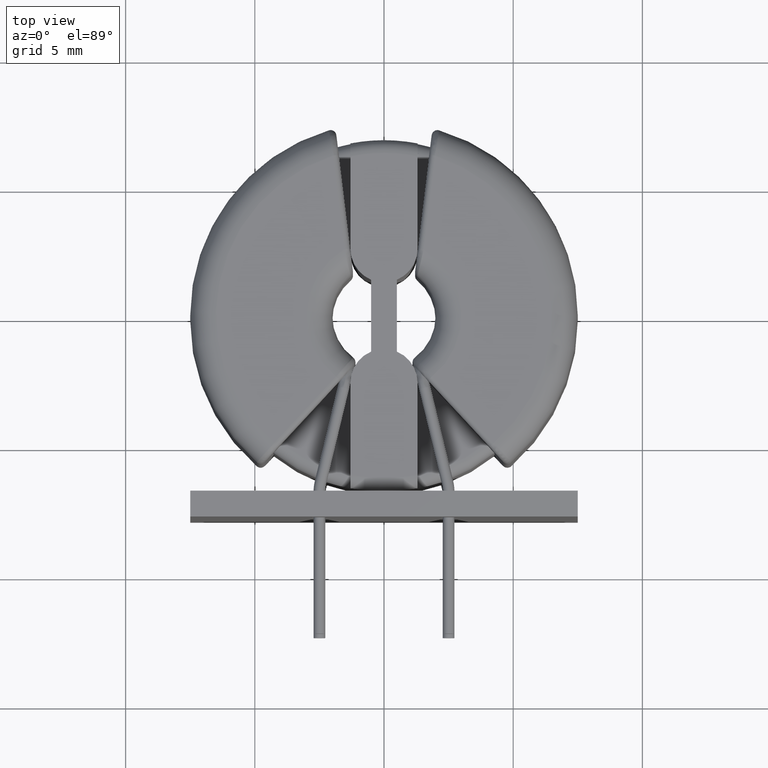
[diagram: clean part render]
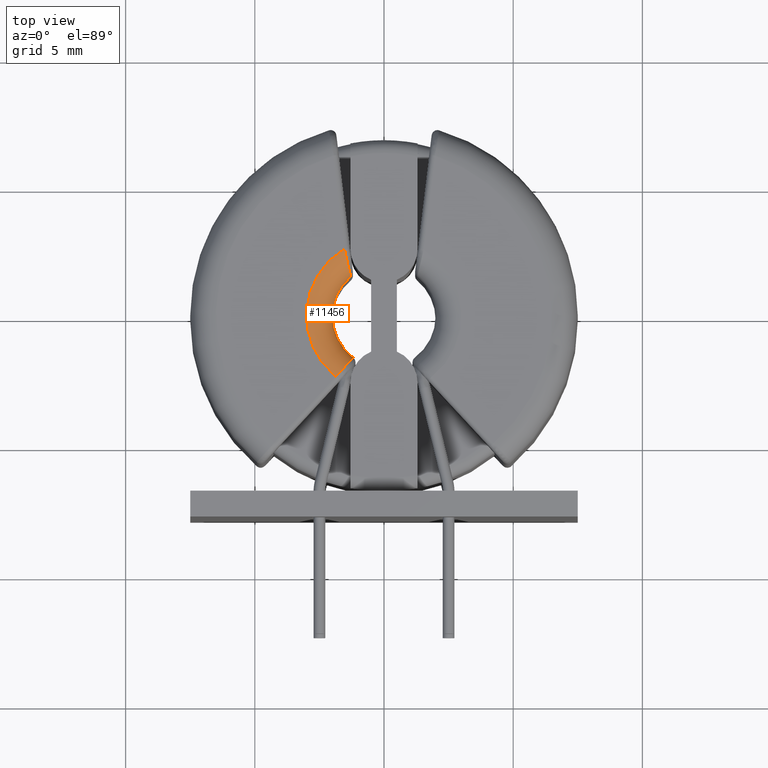
[diagram: same view with one face highlighted and labeled with its STEP entity id]
A machine part, top view. The second image highlights one B-rep face of the part: STEP entity #11456.
In plain terms, the highlighted toroidal blend (fillet) surface has major radius 3 mm and minor (blend) radius 1 mm.
Its self-contained STEP definition (entity closure, byte-faithful):
#234 = DIRECTION ( 'NONE',  ( 0.0000000000000000000, 0.0000000000000000000, 1.000000000000000000 ) ) ;
#272 = CARTESIAN_POINT ( 'NONE',  ( -1.284196003064234093, 1.533245129036399534, 4.400000000000000355 ) ) ;
#815 = CARTESIAN_POINT ( 'NONE',  ( -1.322678405962691262, 1.674164347962722843, 4.916663689870678589 ) ) ;
#922 = CARTESIAN_POINT ( 'NONE',  ( -1.344157074001370855, 1.755201357478131330, 5.027266490034931756 ) ) ;
#948 = ORIENTED_EDGE ( 'NONE', *, *, #8987, .T. ) ;
#1565 = EDGE_CURVE ( 'NONE', #11104, #10008, #3907, .T. ) ;
#1747 = CARTESIAN_POINT ( 'NONE',  ( -1.420910795090495560, 2.065323591915520840, 5.279158598817667247 ) ) ;
#1782 = CARTESIAN_POINT ( 'NONE',  ( -1.477676440515110379, 2.313076939815662314, 5.375264390133119186 ) ) ;
#1822 = CARTESIAN_POINT ( 'NONE',  ( -1.534424193106629586, 2.577894954339503109, 5.400000000000000355 ) ) ;
#1919 = VERTEX_POINT ( 'NONE', #272 ) ;
#1926 = DIRECTION ( 'NONE',  ( 1.000000000000000000, 0.0000000000000000000, 0.0000000000000000000 ) ) ;
#2020 = CARTESIAN_POINT ( 'NONE',  ( 0.0000000000000000000, 0.0000000000000000000, 5.400000000000000355 ) ) ;
#2171 = AXIS2_PLACEMENT_3D ( 'NONE', #6030, #234, #1926 ) ;
#2786 = CARTESIAN_POINT ( 'NONE',  ( -1.860050133224532498, -2.353765812881859265, 5.400000000000000355 ) ) ;
#3437 = CARTESIAN_POINT ( 'NONE',  ( -1.195722130036791953, -1.603199484699354915, 4.400000000000000355 ) ) ;
#3513 = CARTESIAN_POINT ( 'NONE',  ( -1.685433509741102176, -2.158568949587655439, 5.374077687843559659 ) ) ;
#3642 = CARTESIAN_POINT ( 'NONE',  ( -1.524311116495076668, -1.977297972679602500, 5.273937292070503879 ) ) ;
#3907 = B_SPLINE_CURVE_WITH_KNOTS ( 'NONE', 3,
 ( #4468, #7551, #3513, #3642, #4517, #11322, #5484, #9303 ),
 .UNSPECIFIED., .F., .F.,
 ( 4, 2, 2, 4 ),
 ( 4.848699518061080308E-19, 0.0003909747977414774643, 0.0007819495954829543865, 0.001563899190965910724 ),
 .UNSPECIFIED. ) ;
#3936 = ORIENTED_EDGE ( 'NONE', *, *, #9064, .F. ) ;
#4068 = CIRCLE ( 'NONE', #2171, 2.000000000000000000 ) ;
#4134 = CARTESIAN_POINT ( 'NONE',  ( -1.534424193106629586, 2.577894954339503109, 5.400000000000000355 ) ) ;
#4468 = CARTESIAN_POINT ( 'NONE',  ( -1.860050133224532498, -2.353765812881859265, 5.400000000000000355 ) ) ;
#4517 = CARTESIAN_POINT ( 'NONE',  ( -1.450724468579840831, -1.894066179551822993, 5.199852810397016079 ) ) ;
#4703 = CARTESIAN_POINT ( 'NONE',  ( -1.284196003064234093, 1.533245129036399534, 4.400000000000000355 ) ) ;
#4760 = TOROIDAL_SURFACE ( 'NONE', #4992, 3.000000000000000000, 1.000000000000000000 ) ;
#4992 = AXIS2_PLACEMENT_3D ( 'NONE', #8198, #11111, #6291 ) ;
#5077 = B_SPLINE_CURVE_WITH_KNOTS ( 'NONE', 3,
 ( #4703, #6731, #6654, #815, #922, #7602, #1747, #1782, #9626, #1822 ),
 .UNSPECIFIED., .F., .F.,
 ( 4, 2, 2, 2, 4 ),
 ( 0.0000000000000000000, 0.0004051548011460206350, 0.0008103096022920412700, 0.001215464403438061905, 0.001620619204584082540 ),
 .UNSPECIFIED. ) ;
#5441 = DIRECTION ( 'NONE',  ( 0.0000000000000000000, 0.0000000000000000000, 1.000000000000000000 ) ) ;
#5484 = CARTESIAN_POINT ( 'NONE',  ( -1.195722130036791953, -1.603199484699354471, 4.664430635390557356 ) ) ;
#5572 = DIRECTION ( 'NONE',  ( 1.000000000000000000, 0.0000000000000000000, 0.0000000000000000000 ) ) ;
#6030 = CARTESIAN_POINT ( 'NONE',  ( 0.0000000000000000000, 0.0000000000000000000, 4.400000000000000355 ) ) ;
#6291 = DIRECTION ( 'NONE',  ( 1.000000000000000000, 0.0000000000000000000, 0.0000000000000000000 ) ) ;
#6604 = FACE_OUTER_BOUND ( 'NONE', #11305, .T. ) ;
#6654 = CARTESIAN_POINT ( 'NONE',  ( -1.292668181232390356, 1.563278131773936375, 4.671522971989893414 ) ) ;
#6731 = CARTESIAN_POINT ( 'NONE',  ( -1.284196003064233649, 1.533245129036399312, 4.536891898756693742 ) ) ;
#6986 = ORIENTED_EDGE ( 'NONE', *, *, #11211, .F. ) ;
#7012 = AXIS2_PLACEMENT_3D ( 'NONE', #11415, #5441, #5572 ) ;
#7250 = CIRCLE ( 'NONE', #12052, 3.000000000000000000 ) ;
#7551 = CARTESIAN_POINT ( 'NONE',  ( -1.771810397087331124, -2.255315463764195449, 5.400000000000001243 ) ) ;
#7602 = CARTESIAN_POINT ( 'NONE',  ( -1.393277408699120867, 1.950758793801085078, 5.208188232290946296 ) ) ;
#7885 = DIRECTION ( 'NONE',  ( -0.0000000000000000000, -0.0000000000000000000, -1.000000000000000000 ) ) ;
#8023 = VERTEX_POINT ( 'NONE', #10264 ) ;
#8198 = CARTESIAN_POINT ( 'NONE',  ( 0.0000000000000000000, 0.0000000000000000000, 4.400000000000000355 ) ) ;
#8546 = VERTEX_POINT ( 'NONE', #4134 ) ;
#8856 = DIRECTION ( 'NONE',  ( 1.000000000000000000, 1.776356839400250465E-15, 0.0000000000000000000 ) ) ;
#8987 = EDGE_CURVE ( 'NONE', #1919, #8546, #5077, .T. ) ;
#9064 = EDGE_CURVE ( 'NONE', #11104, #8546, #7250, .T. ) ;
#9159 = ORIENTED_EDGE ( 'NONE', *, *, #1565, .T. ) ;
#9303 = CARTESIAN_POINT ( 'NONE',  ( -1.195722130036791953, -1.603199484699354915, 4.400000000000000355 ) ) ;
#9431 = ORIENTED_EDGE ( 'NONE', *, *, #10989, .F. ) ;
#9626 = CARTESIAN_POINT ( 'NONE',  ( -1.506357561335052386, 2.444140445626964642, 5.400000000000000355 ) ) ;
#10008 = VERTEX_POINT ( 'NONE', #3437 ) ;
#10264 = CARTESIAN_POINT ( 'NONE',  ( -2.000000000000000000, 0.0000000000000000000, 4.400000000000000355 ) ) ;
#10989 = EDGE_CURVE ( 'NONE', #1919, #8023, #11689, .T. ) ;
#11104 = VERTEX_POINT ( 'NONE', #2786 ) ;
#11111 = DIRECTION ( 'NONE',  ( 0.0000000000000000000, 0.0000000000000000000, 1.000000000000000000 ) ) ;
#11211 = EDGE_CURVE ( 'NONE', #8023, #10008, #4068, .T. ) ;
#11305 = EDGE_LOOP ( 'NONE', ( #3936, #9159, #6986, #9431, #948 ) ) ;
#11322 = CARTESIAN_POINT ( 'NONE',  ( -1.267308354138724891, -1.685730864731797896, 4.923465112506826280 ) ) ;
#11415 = CARTESIAN_POINT ( 'NONE',  ( 0.0000000000000000000, 0.0000000000000000000, 4.400000000000000355 ) ) ;
#11456 = ADVANCED_FACE ( 'NONE', ( #6604 ), #4760, .T. ) ;
#11689 = CIRCLE ( 'NONE', #7012, 2.000000000000000000 ) ;
#12052 = AXIS2_PLACEMENT_3D ( 'NONE', #2020, #7885, #8856 ) ;